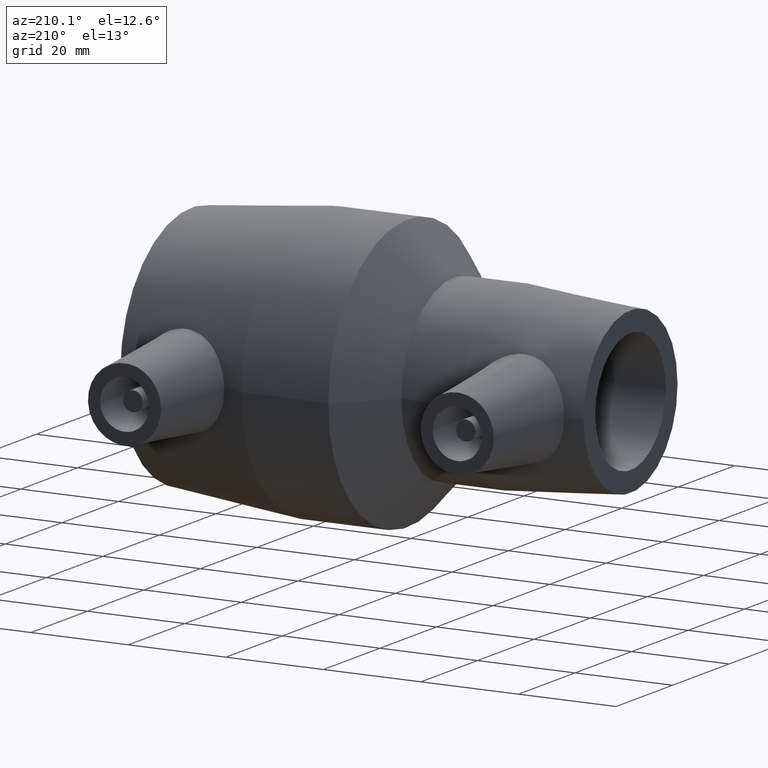
[diagram: clean part render]
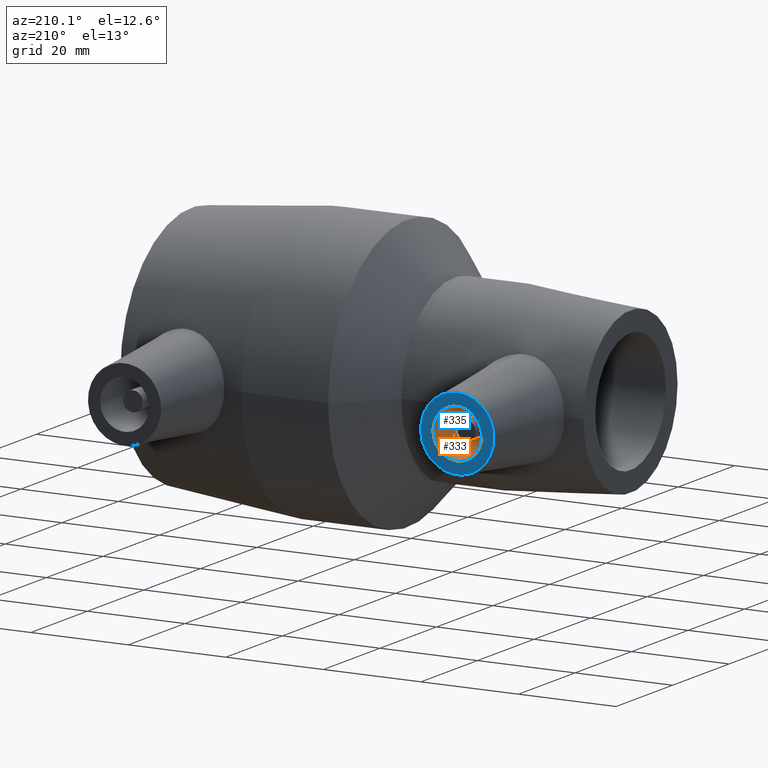
[diagram: same view with the hole feature highlighted: cylindrical wall and planar end face, labeled with their STEP entity ids]
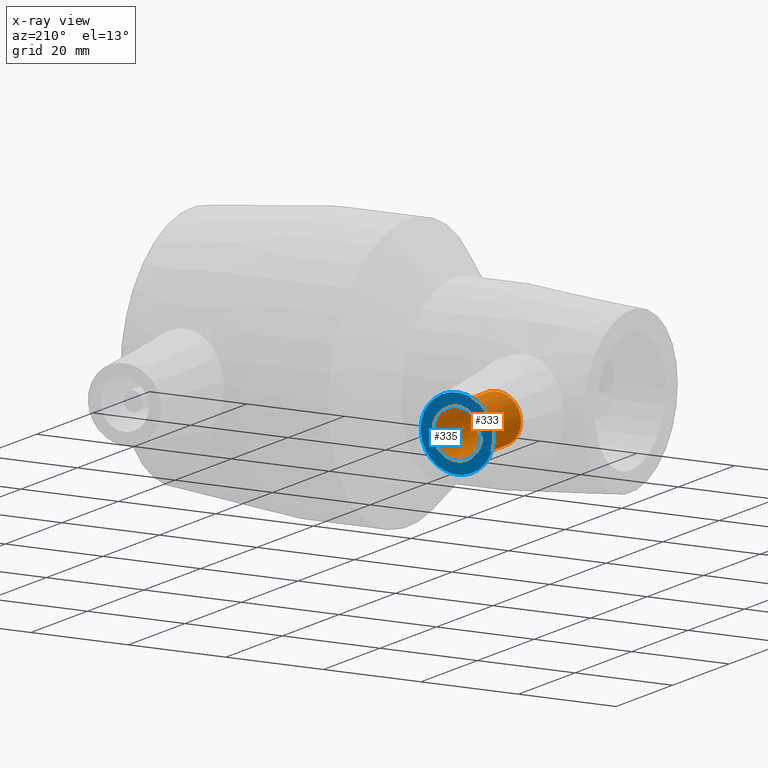
[diagram: x-ray of the same camera — body ghosted, the hole faces saturated]
A machine part, auxiliary view. The highlighted faces form one hole feature of diameter 10 mm: the cylindrical wall (entity #333, orange) and its adjacent planar end face (entity #335, blue) — they share a circular edge in the B-rep.
The next image is the same camera in x-ray (body ghosted, the hole faces saturated) — the bore reads through the body.
Wall:
#31=FACE_BOUND('',#113,.T.);
#59=CYLINDRICAL_SURFACE('',#373,5.);
#75=FACE_OUTER_BOUND('',#112,.T.);
#112=EDGE_LOOP('',(#265));
#113=EDGE_LOOP('',(#266));
#167=CIRCLE('',#374,5.);
#168=CIRCLE('',#375,5.);
#197=VERTEX_POINT('',#599);
#198=VERTEX_POINT('',#601);
#228=EDGE_CURVE('',#197,#197,#167,.T.);
#229=EDGE_CURVE('',#198,#198,#168,.T.);
#265=ORIENTED_EDGE('',*,*,#228,.T.);
#266=ORIENTED_EDGE('',*,*,#229,.F.);
#333=ADVANCED_FACE('',(#75,#31),#59,.F.);
#373=AXIS2_PLACEMENT_3D('',#598,#450,#451);
#374=AXIS2_PLACEMENT_3D('',#600,#452,#453);
#375=AXIS2_PLACEMENT_3D('',#602,#454,#455);
#450=DIRECTION('center_axis',(0.,-1.,0.));
#451=DIRECTION('ref_axis',(-1.,0.,0.));
#452=DIRECTION('center_axis',(0.,-1.,0.));
#453=DIRECTION('ref_axis',(-1.,0.,0.));
#454=DIRECTION('center_axis',(0.,-1.,0.));
#455=DIRECTION('ref_axis',(-1.,0.,0.));
#598=CARTESIAN_POINT('Origin',(-31.5,38.,0.));
#599=CARTESIAN_POINT('',(-26.5,24.,-6.12323399573677E-16));
#600=CARTESIAN_POINT('Origin',(-31.5,24.,0.));
#601=CARTESIAN_POINT('',(-26.5,38.,-6.12323399573677E-16));
#602=CARTESIAN_POINT('Origin',(-31.5,38.,0.));
End face:
#33=FACE_BOUND('',#117,.T.);
#77=FACE_OUTER_BOUND('',#116,.T.);
#116=EDGE_LOOP('',(#269));
#117=EDGE_LOOP('',(#270));
#168=CIRCLE('',#375,5.);
#169=CIRCLE('',#378,7.5);
#198=VERTEX_POINT('',#601);
#199=VERTEX_POINT('',#605);
#229=EDGE_CURVE('',#198,#198,#168,.T.);
#230=EDGE_CURVE('',#199,#199,#169,.T.);
#269=ORIENTED_EDGE('',*,*,#230,.F.);
#270=ORIENTED_EDGE('',*,*,#229,.T.);
#318=PLANE('',#377);
#335=ADVANCED_FACE('',(#77,#33),#318,.T.);
#375=AXIS2_PLACEMENT_3D('',#602,#454,#455);
#377=AXIS2_PLACEMENT_3D('',#604,#458,#459);
#378=AXIS2_PLACEMENT_3D('',#606,#460,#461);
#454=DIRECTION('center_axis',(0.,-1.,0.));
#455=DIRECTION('ref_axis',(-1.,0.,0.));
#458=DIRECTION('center_axis',(0.,1.,0.));
#459=DIRECTION('ref_axis',(0.,0.,1.));
#460=DIRECTION('center_axis',(0.,-1.,0.));
#461=DIRECTION('ref_axis',(1.,0.,0.));
#601=CARTESIAN_POINT('',(-26.5,38.,-6.12323399573677E-16));
#602=CARTESIAN_POINT('Origin',(-31.5,38.,0.));
#604=CARTESIAN_POINT('Origin',(-31.5,38.,1.2335811384724E-16));
#605=CARTESIAN_POINT('',(-39.,38.,9.18485099360515E-16));
#606=CARTESIAN_POINT('Origin',(-31.5,38.,0.));